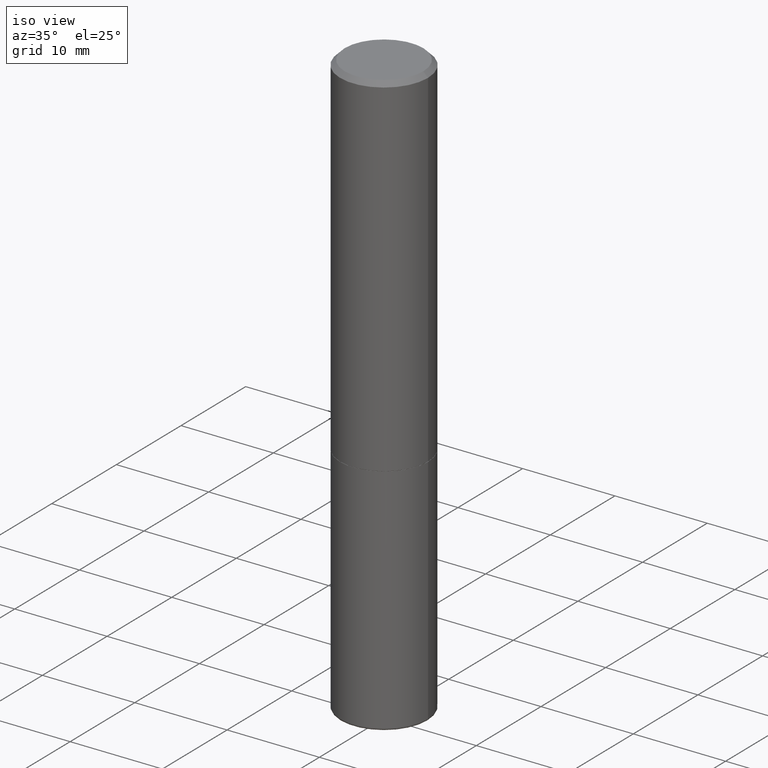
[diagram: clean part render]
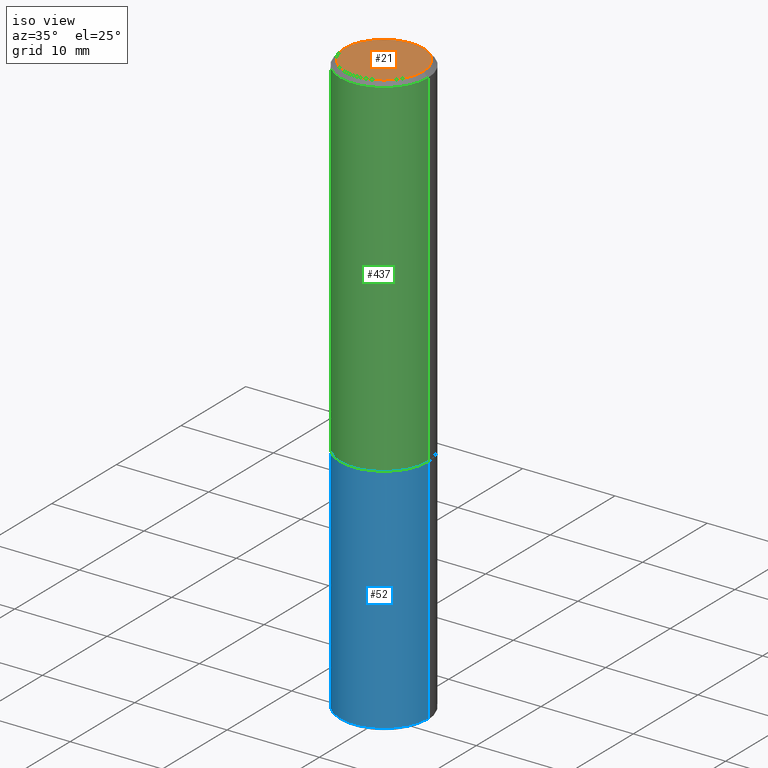
[diagram: same view with three faces highlighted in distinct colors, each labeled with its STEP entity id]
A machine part, iso view with three faces highlighted in distinct colors.
Their STEP definitions:

[orange] entity #21 — the highlighted planar face has unit normal (0, -0, -1).
#21 = ADVANCED_FACE ( 'NONE', ( #374 ), #489, .F. ) ;
#22 = AXIS2_PLACEMENT_3D ( 'NONE', #230, #192, #449 ) ;
#23 = CIRCLE ( 'NONE', #90, 0.1674999999999994549 ) ;
#28 = CIRCLE ( 'NONE', #133, 0.1674999999999994549 ) ;
#71 = EDGE_LOOP ( 'NONE', ( #416, #123 ) ) ;
#90 = AXIS2_PLACEMENT_3D ( 'NONE', #205, #338, #132 ) ;
#123 = ORIENTED_EDGE ( 'NONE', *, *, #254, .T. ) ;
#131 = CARTESIAN_POINT ( 'NONE',  ( -1.043851414335219820E-46, 1.490343170380447200E-32, 4.268512490100411279E-18 ) ) ;
#132 = DIRECTION ( 'NONE',  ( 1.000000000000000000, -6.982962677686265133E-15, 4.875936752492908897E-29 ) ) ;
#133 = AXIS2_PLACEMENT_3D ( 'NONE', #131, #143, #331 ) ;
#143 = DIRECTION ( 'NONE',  ( -2.445468806185136597E-29, 3.491481338843145583E-15, 1.000000000000000000 ) ) ;
#182 = CARTESIAN_POINT ( 'NONE',  ( 0.1674999999999994549, -1.252653207992874936E-15, 4.268512490108880748E-18 ) ) ;
#192 = DIRECTION ( 'NONE',  ( 2.438088387897960049E-29, -3.491481338843145188E-15, -1.000000000000000000 ) ) ;
#205 = CARTESIAN_POINT ( 'NONE',  ( -1.043851414335219820E-46, 1.490343170380447200E-32, 4.268512490100411279E-18 ) ) ;
#218 = EDGE_CURVE ( 'NONE', #466, #444, #28, .T. ) ;
#230 = CARTESIAN_POINT ( 'NONE',  ( 1.169646248512445651E-15, 0.1674999999999994549, -5.826888680111746828E-16 ) ) ;
#254 = EDGE_CURVE ( 'NONE', #444, #466, #23, .T. ) ;
#275 = CARTESIAN_POINT ( 'NONE',  ( -0.1674999999999994549, 1.204561061900876905E-15, 4.268512490092109750E-18 ) ) ;
#331 = DIRECTION ( 'NONE',  ( 1.000000000000000000, -6.982962677686265133E-15, 4.875936752492908897E-29 ) ) ;
#338 = DIRECTION ( 'NONE',  ( -2.445468806185136597E-29, 3.491481338843145583E-15, 1.000000000000000000 ) ) ;
#374 = FACE_OUTER_BOUND ( 'NONE', #71, .T. ) ;
#416 = ORIENTED_EDGE ( 'NONE', *, *, #218, .T. ) ;
#444 = VERTEX_POINT ( 'NONE', #182 ) ;
#449 = DIRECTION ( 'NONE',  ( -1.000000000000000000, 6.982962677686265922E-15, -4.876176775795935793E-29 ) ) ;
#466 = VERTEX_POINT ( 'NONE', #275 ) ;
#489 = PLANE ( 'NONE',  #22 ) ;

[blue] entity #52 — the highlighted cylindrical surface (partial cylindrical patch) has radius 4.7625 mm, axis along (-0, 0, 1).
#12 = CARTESIAN_POINT ( 'NONE',  ( 3.668203209277704895E-29, -5.237222008264718177E-15, -1.500000000000000222 ) ) ;
#15 = ORIENTED_EDGE ( 'NONE', *, *, #207, .F. ) ;
#44 = DIRECTION ( 'NONE',  ( -2.445468806185136597E-29, 3.491481338843145583E-15, 1.000000000000000000 ) ) ;
#46 = VERTEX_POINT ( 'NONE', #161 ) ;
#52 = ADVANCED_FACE ( 'NONE', ( #307 ), #113, .T. ) ;
#73 = ORIENTED_EDGE ( 'NONE', *, *, #478, .T. ) ;
#74 = CIRCLE ( 'NONE', #295, 0.1874999999999995837 ) ;
#82 = DIRECTION ( 'NONE',  ( 1.000000000000000000, -6.982962677686267499E-15, 4.876176775795935232E-29 ) ) ;
#83 = CARTESIAN_POINT ( 'NONE',  ( 0.1874999999999996392, -1.309305502066172642E-15, 9.142831454617361395E-30 ) ) ;
#88 = CARTESIAN_POINT ( 'NONE',  ( -0.1874999999999996392, 1.332267629550185285E-15, -9.223003294227931175E-30 ) ) ;
#92 = VERTEX_POINT ( 'NONE', #155 ) ;
#100 = CARTESIAN_POINT ( 'NONE',  ( 0.1874999999999995837, -1.000309536523471494E-14, -2.490000380769358479 ) ) ;
#113 = CYLINDRICAL_SURFACE ( 'NONE', #360, 0.1874999999999996392 ) ;
#114 = CARTESIAN_POINT ( 'NONE',  ( -0.1874999999999995837, -5.633238306166445543E-15, -2.490000380769358479 ) ) ;
#115 = CARTESIAN_POINT ( 'NONE',  ( 0.000000000000000000, 0.000000000000000000, 0.000000000000000000 ) ) ;
#126 = LINE ( 'NONE', #88, #440 ) ;
#128 = CARTESIAN_POINT ( 'NONE',  ( 6.089218258560578567E-29, -8.693789863168541507E-15, -2.490000380769358479 ) ) ;
#155 = CARTESIAN_POINT ( 'NONE',  ( -0.1874999999999996947, -5.633238306166445543E-15, -1.500000000000000222 ) ) ;
#161 = CARTESIAN_POINT ( 'NONE',  ( 0.1874999999999996947, -6.546527510330890818E-15, -1.500000000000000222 ) ) ;
#170 = EDGE_LOOP ( 'NONE', ( #15, #73, #377, #257 ) ) ;
#186 = CIRCLE ( 'NONE', #303, 0.1874999999999996947 ) ;
#207 = EDGE_CURVE ( 'NONE', #298, #92, #126, .T. ) ;
#227 = DIRECTION ( 'NONE',  ( 1.000000000000000000, -6.982962677686268288E-15, 0.000000000000000000 ) ) ;
#244 = EDGE_CURVE ( 'NONE', #432, #46, #456, .T. ) ;
#257 = ORIENTED_EDGE ( 'NONE', *, *, #319, .F. ) ;
#283 = DIRECTION ( 'NONE',  ( 1.000000000000000000, -6.982962677686264344E-15, 0.000000000000000000 ) ) ;
#295 = AXIS2_PLACEMENT_3D ( 'NONE', #128, #311, #227 ) ;
#298 = VERTEX_POINT ( 'NONE', #114 ) ;
#303 = AXIS2_PLACEMENT_3D ( 'NONE', #12, #44, #283 ) ;
#307 = FACE_OUTER_BOUND ( 'NONE', #170, .T. ) ;
#311 = DIRECTION ( 'NONE',  ( -2.445468806185136597E-29, 3.491481338843145583E-15, 1.000000000000000000 ) ) ;
#317 = DIRECTION ( 'NONE',  ( -2.445468806185136877E-29, 3.491481338843145188E-15, 1.000000000000000000 ) ) ;
#319 = EDGE_CURVE ( 'NONE', #92, #46, #186, .T. ) ;
#360 = AXIS2_PLACEMENT_3D ( 'NONE', #115, #409, #82 ) ;
#377 = ORIENTED_EDGE ( 'NONE', *, *, #244, .T. ) ;
#409 = DIRECTION ( 'NONE',  ( -2.445468806185136597E-29, 3.491481338843145583E-15, 1.000000000000000000 ) ) ;
#418 = DIRECTION ( 'NONE',  ( -2.445468806185136877E-29, 3.491481338843145188E-15, 1.000000000000000000 ) ) ;
#432 = VERTEX_POINT ( 'NONE', #100 ) ;
#440 = VECTOR ( 'NONE', #317, 39.37007874015748143 ) ;
#456 = LINE ( 'NONE', #83, #492 ) ;
#478 = EDGE_CURVE ( 'NONE', #298, #432, #74, .T. ) ;
#492 = VECTOR ( 'NONE', #418, 39.37007874015748143 ) ;

[green] entity #437 — the highlighted cylindrical surface (partial cylindrical patch) has radius 4.7625 mm, axis along (-0, 0, 1).
#20 = VERTEX_POINT ( 'NONE', #304 ) ;
#45 = AXIS2_PLACEMENT_3D ( 'NONE', #419, #59, #63 ) ;
#58 = VERTEX_POINT ( 'NONE', #471 ) ;
#59 = DIRECTION ( 'NONE',  ( -2.445468806185136597E-29, 3.491481338843145583E-15, 1.000000000000000000 ) ) ;
#60 = DIRECTION ( 'NONE',  ( -2.445468806185136877E-29, 3.491481338843145188E-15, 1.000000000000000000 ) ) ;
#63 = DIRECTION ( 'NONE',  ( 1.000000000000000000, -6.982962677686267499E-15, 4.876176775795935232E-29 ) ) ;
#64 = VERTEX_POINT ( 'NONE', #139 ) ;
#65 = DIRECTION ( 'NONE',  ( 1.000000000000000000, -6.982962677686264344E-15, 0.000000000000000000 ) ) ;
#84 = VECTOR ( 'NONE', #312, 39.37007874015748143 ) ;
#96 = LINE ( 'NONE', #315, #84 ) ;
#125 = EDGE_CURVE ( 'NONE', #20, #58, #179, .T. ) ;
#139 = CARTESIAN_POINT ( 'NONE',  ( 0.1874999999999996947, -6.543036028992048600E-15, -1.499000000000000110 ) ) ;
#162 = EDGE_LOOP ( 'NONE', ( #447, #279, #468, #175 ) ) ;
#175 = ORIENTED_EDGE ( 'NONE', *, *, #125, .F. ) ;
#179 = CIRCLE ( 'NONE', #259, 0.1874999999999995004 ) ;
#180 = CARTESIAN_POINT ( 'NONE',  ( 4.890937612370301184E-31, -6.982962677686329819E-17, -0.02000000000000011144 ) ) ;
#201 = AXIS2_PLACEMENT_3D ( 'NONE', #392, #214, #65 ) ;
#210 = CYLINDRICAL_SURFACE ( 'NONE', #45, 0.1874999999999996114 ) ;
#214 = DIRECTION ( 'NONE',  ( -2.445468806185136597E-29, 3.491481338843145583E-15, 1.000000000000000000 ) ) ;
#259 = AXIS2_PLACEMENT_3D ( 'NONE', #180, #380, #423 ) ;
#279 = ORIENTED_EDGE ( 'NONE', *, *, #431, .T. ) ;
#304 = CARTESIAN_POINT ( 'NONE',  ( -0.1874999999999995004, 1.239475875289308357E-15, -0.02000000000000011144 ) ) ;
#312 = DIRECTION ( 'NONE',  ( -2.445468806185136877E-29, 3.491481338843145188E-15, 1.000000000000000000 ) ) ;
#315 = CARTESIAN_POINT ( 'NONE',  ( -0.1874999999999996114, 1.332267629550185087E-15, -9.223003294227929774E-30 ) ) ;
#328 = VERTEX_POINT ( 'NONE', #473 ) ;
#333 = EDGE_CURVE ( 'NONE', #64, #58, #475, .T. ) ;
#339 = EDGE_CURVE ( 'NONE', #328, #20, #96, .T. ) ;
#380 = DIRECTION ( 'NONE',  ( -2.445468806185136597E-29, 3.491481338843145583E-15, 1.000000000000000000 ) ) ;
#391 = FACE_OUTER_BOUND ( 'NONE', #162, .T. ) ;
#392 = CARTESIAN_POINT ( 'NONE',  ( 3.665757740471519853E-29, -5.233730526925875958E-15, -1.499000000000000110 ) ) ;
#405 = CIRCLE ( 'NONE', #201, 0.1874999999999996947 ) ;
#419 = CARTESIAN_POINT ( 'NONE',  ( 0.000000000000000000, 0.000000000000000000, 0.000000000000000000 ) ) ;
#423 = DIRECTION ( 'NONE',  ( 1.000000000000000000, -6.982962677686267499E-15, 0.000000000000000000 ) ) ;
#429 = CARTESIAN_POINT ( 'NONE',  ( 0.1874999999999996114, -1.309305502066172444E-15, 9.142831454617359993E-30 ) ) ;
#431 = EDGE_CURVE ( 'NONE', #328, #64, #405, .T. ) ;
#434 = VECTOR ( 'NONE', #60, 39.37007874015748143 ) ;
#437 = ADVANCED_FACE ( 'NONE', ( #391 ), #210, .T. ) ;
#447 = ORIENTED_EDGE ( 'NONE', *, *, #339, .F. ) ;
#468 = ORIENTED_EDGE ( 'NONE', *, *, #333, .T. ) ;
#471 = CARTESIAN_POINT ( 'NONE',  ( 0.1874999999999995004, -1.356173001359022113E-15, -0.02000000000000011144 ) ) ;
#473 = CARTESIAN_POINT ( 'NONE',  ( -0.1874999999999996669, -1.319512447301182766E-15, -1.499000000000000110 ) ) ;
#475 = LINE ( 'NONE', #429, #434 ) ;